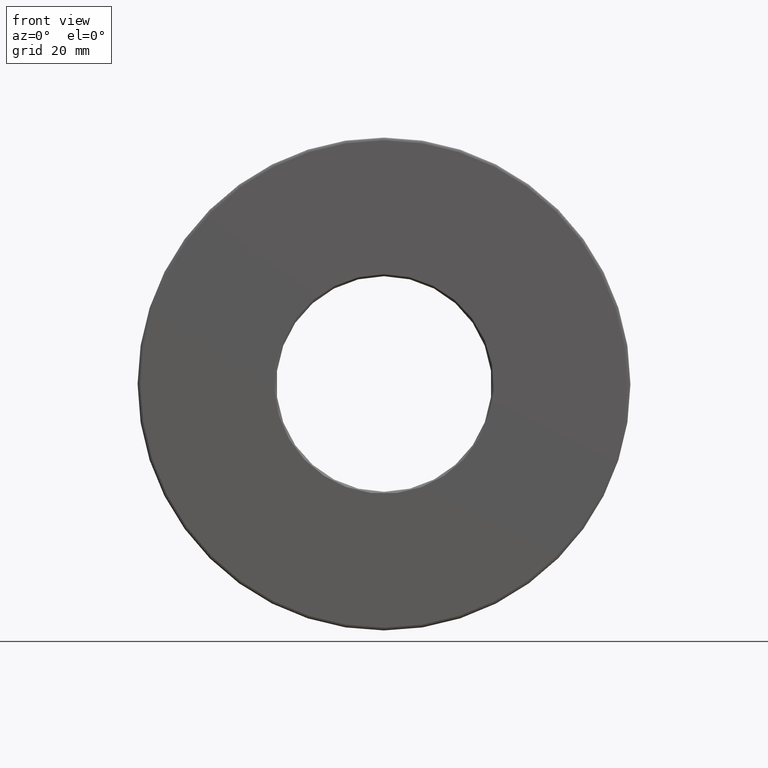
[diagram: clean part render]
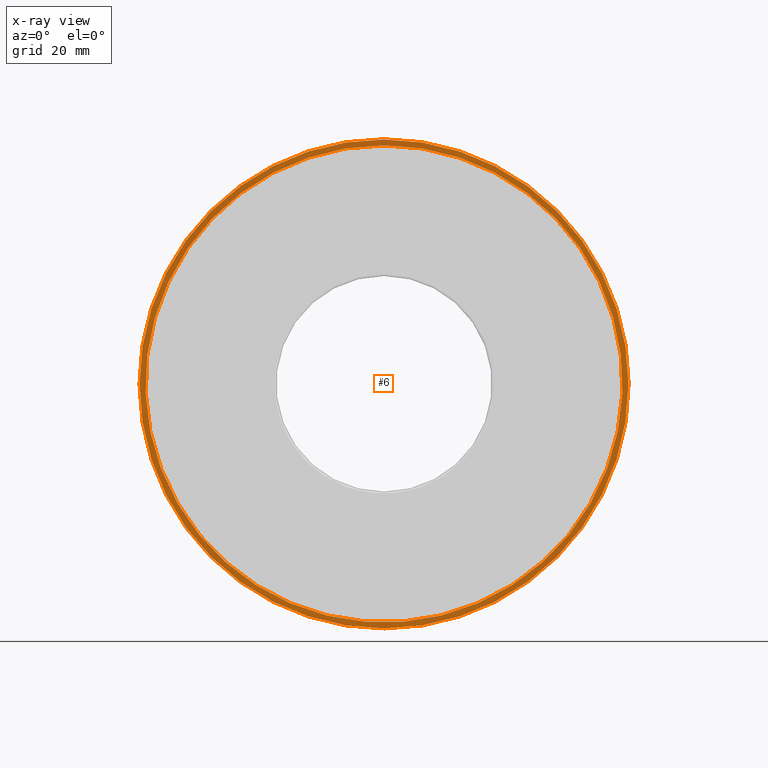
[diagram: x-ray — body ghosted, one internal face saturated and labeled with its STEP entity id]
A machine part, front view, then the same camera in x-ray: the body is ghosted and one INTERNAL B-rep face — a face not visible from any outside direction — is saturated and labeled: STEP entity #6.
In plain terms, the highlighted planar face has unit normal (-0, 1, 0).
Its self-contained STEP definition (entity closure, byte-faithful):
#6 = ADVANCED_FACE ( 'NONE', ( #316, #69 ), #331, .F. ) ;
#8 = DIRECTION ( 'NONE',  ( 0.0000000000000000000, 0.0000000000000000000, 1.000000000000000000 ) ) ;
#13 = AXIS2_PLACEMENT_3D ( 'NONE', #82, #453, #264 ) ;
#61 = AXIS2_PLACEMENT_3D ( 'NONE', #382, #103, #8 ) ;
#69 = FACE_BOUND ( 'NONE', #432, .T. ) ;
#71 = AXIS2_PLACEMENT_3D ( 'NONE', #132, #407, #178 ) ;
#82 = CARTESIAN_POINT ( 'NONE',  ( 0.0000000000000000000, 2.214999999999999900, 0.0000000000000000000 ) ) ;
#103 = DIRECTION ( 'NONE',  ( -0.0000000000000000000, 1.000000000000000000, 0.0000000000000000000 ) ) ;
#111 = EDGE_LOOP ( 'NONE', ( #163 ) ) ;
#132 = CARTESIAN_POINT ( 'NONE',  ( 0.0000000000000000000, 2.214999999999999900, 0.0000000000000000000 ) ) ;
#163 = ORIENTED_EDGE ( 'NONE', *, *, #408, .F. ) ;
#178 = DIRECTION ( 'NONE',  ( 0.0000000000000000000, 0.0000000000000000000, 1.000000000000000000 ) ) ;
#264 = DIRECTION ( 'NONE',  ( 0.0000000000000000000, 0.0000000000000000000, 1.000000000000000000 ) ) ;
#316 = FACE_OUTER_BOUND ( 'NONE', #111, .T. ) ;
#328 = CIRCLE ( 'NONE', #13, 2.480000000000000400 ) ;
#331 = PLANE ( 'NONE',  #61 ) ;
#382 = CARTESIAN_POINT ( 'NONE',  ( 0.0000000000000000000, 2.214999999999999900, 0.0000000000000000000 ) ) ;
#407 = DIRECTION ( 'NONE',  ( -0.0000000000000000000, 1.000000000000000000, -0.0000000000000000000 ) ) ;
#408 = EDGE_CURVE ( 'NONE', #442, #442, #328, .T. ) ;
#421 = CARTESIAN_POINT ( 'NONE',  ( 0.0000000000000000000, 2.214999999999999900, 2.420000000000000800 ) ) ;
#432 = EDGE_LOOP ( 'NONE', ( #503 ) ) ;
#442 = VERTEX_POINT ( 'NONE', #472 ) ;
#453 = DIRECTION ( 'NONE',  ( -0.0000000000000000000, 1.000000000000000000, -0.0000000000000000000 ) ) ;
#472 = CARTESIAN_POINT ( 'NONE',  ( 0.0000000000000000000, 2.214999999999999900, 2.480000000000000400 ) ) ;
#502 = EDGE_CURVE ( 'NONE', #531, #531, #594, .T. ) ;
#503 = ORIENTED_EDGE ( 'NONE', *, *, #502, .T. ) ;
#531 = VERTEX_POINT ( 'NONE', #421 ) ;
#594 = CIRCLE ( 'NONE', #71, 2.420000000000000800 ) ;